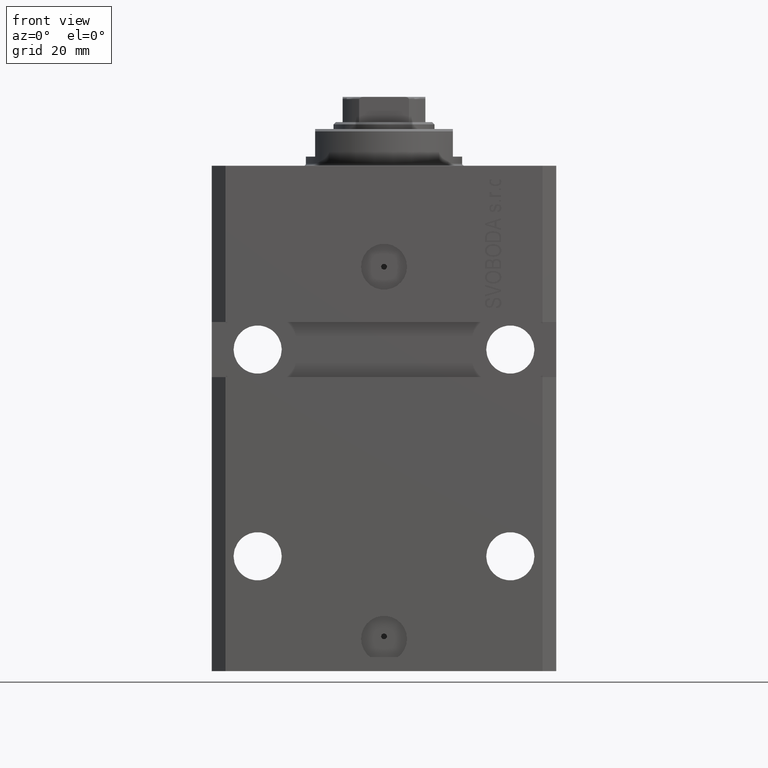
[diagram: clean part render]
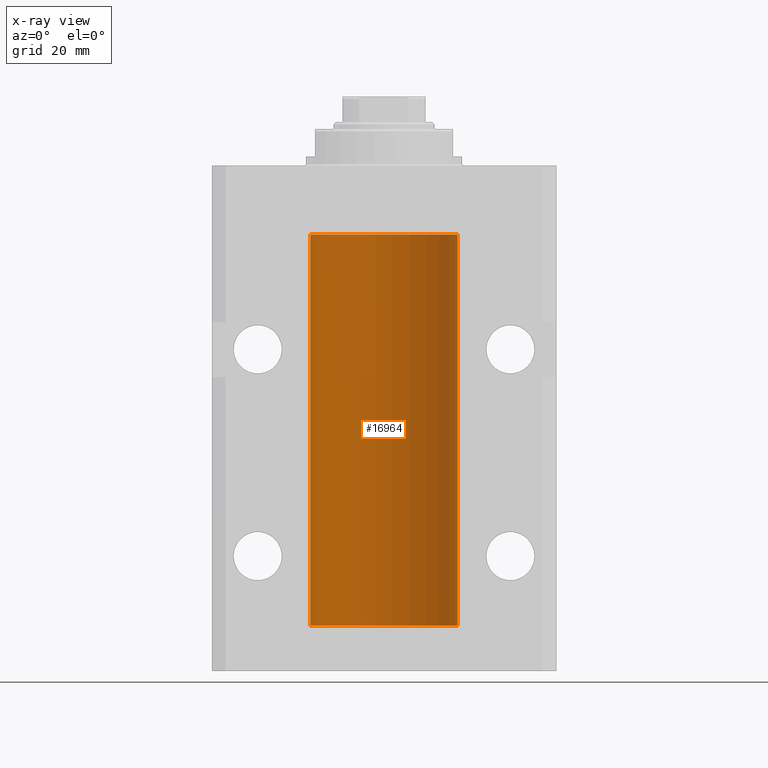
[diagram: x-ray — body ghosted, one internal face saturated and labeled with its STEP entity id]
A machine part, front view, then the same camera in x-ray: the body is ghosted and one INTERNAL B-rep face — a face not visible from any outside direction — is saturated and labeled: STEP entity #16964.
In plain terms, the highlighted cylindrical surface (partial cylindrical patch) has radius 16 mm, axis along (0, 0, 1).
Its self-contained STEP definition (entity closure, byte-faithful):
#267 = CARTESIAN_POINT ( 'NONE',  ( -16.00000000000000000, 1.643679961284177128E-16, -21.37499999999999645 ) ) ;
#620 = CARTESIAN_POINT ( 'NONE',  ( -15.98779057735153941, 0.6249419637998017141, -97.83670145863504786 ) ) ;
#675 = EDGE_CURVE ( 'NONE', #2167, #31385, #31049, .T. ) ;
#847 = CARTESIAN_POINT ( 'NONE',  ( -15.99999999999998934, 0.1631714642025804407, -98.62499999999987210 ) ) ;
#1558 = CARTESIAN_POINT ( 'NONE',  ( -16.00000000000000711, 0.08259886010188650929, -97.37500000000000000 ) ) ;
#1810 = VECTOR ( 'NONE', #18107, 1000.000000000000000 ) ;
#2167 = VERTEX_POINT ( 'NONE', #267 ) ;
#2294 = DIRECTION ( 'NONE',  ( 1.000000000000000000, 0.000000000000000000, 0.000000000000000000 ) ) ;
#2775 = DIRECTION ( 'NONE',  ( 0.000000000000000000, 0.000000000000000000, 1.000000000000000000 ) ) ;
#3204 = LINE ( 'NONE', #24772, #32846 ) ;
#3752 = AXIS2_PLACEMENT_3D ( 'NONE', #28171, #32017, #38945 ) ;
#4665 = DIRECTION ( 'NONE',  ( -0.000000000000000000, -0.000000000000000000, 1.000000000000000000 ) ) ;
#5060 = VERTEX_POINT ( 'NONE', #5230 ) ;
#5063 = CARTESIAN_POINT ( 'NONE',  ( -16.00000000000000000, 1.643679961284177128E-16, -21.37499999999999645 ) ) ;
#5230 = CARTESIAN_POINT ( 'NONE',  ( -16.00000000000013145, 3.685127038166941002E-13, -22.62500000000341771 ) ) ;
#5392 = CARTESIAN_POINT ( 'NONE',  ( -15.99070653155267685, 0.5573233280232928744, -97.67348148680505915 ) ) ;
#5770 = CARTESIAN_POINT ( 'NONE',  ( -15.98778717651346071, 0.6250289588122140971, -22.08131585687052478 ) ) ;
#6244 = CARTESIAN_POINT ( 'NONE',  ( -15.98779057735153941, 0.6249419637998100407, -21.83670145863507273 ) ) ;
#6574 = CARTESIAN_POINT ( 'NONE',  ( 16.00000000000000000, 0.000000000000000000, -100.0999999999999943 ) ) ;
#7789 = CARTESIAN_POINT ( 'NONE',  ( 16.00000000000000000, 0.000000000000000000, -100.0999999999999943 ) ) ;
#8398 = CARTESIAN_POINT ( 'NONE',  ( -16.00000000000013145, 3.685127046438747128E-13, -98.62500000000343903 ) ) ;
#8977 = CARTESIAN_POINT ( 'NONE',  ( -15.99934216141748244, 0.1636497843296308152, -97.39126528029306940 ) ) ;
#9123 = ORIENTED_EDGE ( 'NONE', *, *, #30662, .F. ) ;
#9319 = VERTEX_POINT ( 'NONE', #46837 ) ;
#9720 = ORIENTED_EDGE ( 'NONE', *, *, #28095, .T. ) ;
#9978 = FACE_OUTER_BOUND ( 'NONE', #16064, .T. ) ;
#10205 = VECTOR ( 'NONE', #4665, 1000.000000000000000 ) ;
#11145 = LINE ( 'NONE', #7789, #1810 ) ;
#13182 = CARTESIAN_POINT ( 'NONE',  ( -15.99711699979842017, 0.3253759916140657737, -22.55856151623175521 ) ) ;
#13320 = DIRECTION ( 'NONE',  ( -0.000000000000000000, -0.000000000000000000, 1.000000000000000000 ) ) ;
#13597 = EDGE_CURVE ( 'NONE', #2167, #5060, #42744, .T. ) ;
#14171 = VECTOR ( 'NONE', #13320, 1000.000000000000000 ) ;
#15234 = CARTESIAN_POINT ( 'NONE',  ( -15.98844267028590949, 0.6088369347963275002, -98.16324735024325321 ) ) ;
#16064 = EDGE_LOOP ( 'NONE', ( #9123, #23151, #39865, #9720, #25071, #42817, #32722, #27097 ) ) ;
#16099 = AXIS2_PLACEMENT_3D ( 'NONE', #31753, #17864, #2294 ) ;
#16794 = CARTESIAN_POINT ( 'NONE',  ( -15.99707730059171240, 0.3150375992092407373, -21.45402333202571654 ) ) ;
#16964 = ADVANCED_FACE ( 'NONE', ( #9978 ), #36071, .F. ) ;
#17028 = CARTESIAN_POINT ( 'NONE',  ( -16.00000000000000000, 0.1631714642025800244, -22.62499999999985789 ) ) ;
#17360 = EDGE_CURVE ( 'NONE', #43683, #5060, #3204, .T. ) ;
#17864 = DIRECTION ( 'NONE',  ( 0.000000000000000000, 0.000000000000000000, 1.000000000000000000 ) ) ;
#18107 = DIRECTION ( 'NONE',  ( -0.000000000000000000, -0.000000000000000000, 1.000000000000000000 ) ) ;
#18382 = B_SPLINE_CURVE_WITH_KNOTS ( 'NONE', 3,
 ( #23361, #1558, #8977, #38187, #23588, #5392, #620, #22657, #15234, #29832, #44415, #26235, #847, #44653 ),
 .UNSPECIFIED., .F., .F.,
 ( 4, 2, 2, 2, 2, 2, 4 ),
 ( 1.003919637555167698E-18, 0.0002442776652680894158, 0.0004885553305361776391, 0.0009771106610723541940, 0.001221388326340463017, 0.001465665991608572274, 0.001954221322144760863 ),
 .UNSPECIFIED. ) ;
#19915 = CARTESIAN_POINT ( 'NONE',  ( -15.99070653155267685, 0.5573233280232986475, -21.67348148680506625 ) ) ;
#20536 = EDGE_CURVE ( 'NONE', #43683, #39461, #18382, .T. ) ;
#20622 = CARTESIAN_POINT ( 'NONE',  ( -15.99548640841683067, 0.3843705577988847377, -21.50046628527008608 ) ) ;
#20855 = CARTESIAN_POINT ( 'NONE',  ( -15.98844267028591482, 0.6088369347963316081, -22.16324735024328518 ) ) ;
#21191 = DIRECTION ( 'NONE',  ( -0.000000000000000000, -0.000000000000000000, 1.000000000000000000 ) ) ;
#21683 = DIRECTION ( 'NONE',  ( 1.000000000000000000, 0.000000000000000000, 0.000000000000000000 ) ) ;
#22657 = CARTESIAN_POINT ( 'NONE',  ( -15.98778717651346604, 0.6250289588122097673, -98.08131585687051768 ) ) ;
#22876 = CARTESIAN_POINT ( 'NONE',  ( -16.00000000000000000, 1.959434878635765131E-15, -100.0999999999999943 ) ) ;
#23126 = AXIS2_PLACEMENT_3D ( 'NONE', #24794, #2775, #21683 ) ;
#23151 = ORIENTED_EDGE ( 'NONE', *, *, #24000, .F. ) ;
#23361 = CARTESIAN_POINT ( 'NONE',  ( -16.00000000000000000, -1.303459030566954747E-14, -97.37500000000000000 ) ) ;
#23411 = CARTESIAN_POINT ( 'NONE',  ( -16.00000000000000000, 1.959434878635765131E-15, -15.00000000000000000 ) ) ;
#23498 = CARTESIAN_POINT ( 'NONE',  ( -15.99228023727724413, 0.5003781296993413674, -22.38347829554236057 ) ) ;
#23588 = CARTESIAN_POINT ( 'NONE',  ( -15.99548640841682712, 0.3843705577988784650, -97.50046628527007897 ) ) ;
#23732 = CARTESIAN_POINT ( 'NONE',  ( -15.99070426498503217, 0.5462220647145618058, -22.31460064614143590 ) ) ;
#24000 = EDGE_CURVE ( 'NONE', #38102, #45446, #42833, .T. ) ;
#24772 = CARTESIAN_POINT ( 'NONE',  ( -16.00000000000000000, 1.959434878635765131E-15, -100.0999999999999943 ) ) ;
#24794 = CARTESIAN_POINT ( 'NONE',  ( 0.000000000000000000, 0.000000000000000000, -15.00000000000000000 ) ) ;
#25071 = ORIENTED_EDGE ( 'NONE', *, *, #675, .F. ) ;
#26235 = CARTESIAN_POINT ( 'NONE',  ( -15.99711699979841661, 0.3253759916140614439, -98.55856151623174810 ) ) ;
#27097 = ORIENTED_EDGE ( 'NONE', *, *, #20536, .T. ) ;
#28095 = EDGE_CURVE ( 'NONE', #9319, #31385, #39155, .T. ) ;
#28171 = CARTESIAN_POINT ( 'NONE',  ( 0.000000000000000000, 0.000000000000000000, -100.0999999999999943 ) ) ;
#29832 = CARTESIAN_POINT ( 'NONE',  ( -15.99070426498503572, 0.5462220647145610286, -98.31460064614144301 ) ) ;
#30662 = EDGE_CURVE ( 'NONE', #45446, #39461, #36533, .T. ) ;
#31049 = LINE ( 'NONE', #42269, #14171 ) ;
#31385 = VERTEX_POINT ( 'NONE', #23411 ) ;
#31753 = CARTESIAN_POINT ( 'NONE',  ( 0.000000000000000000, 0.000000000000000000, -100.0999999999999943 ) ) ;
#32017 = DIRECTION ( 'NONE',  ( -0.000000000000000000, -0.000000000000000000, 1.000000000000000000 ) ) ;
#32722 = ORIENTED_EDGE ( 'NONE', *, *, #17360, .F. ) ;
#32846 = VECTOR ( 'NONE', #21191, 1000.000000000000000 ) ;
#34496 = CARTESIAN_POINT ( 'NONE',  ( -16.00000000000000711, 0.08259886010189904093, -21.37500000000000000 ) ) ;
#36071 = CYLINDRICAL_SURFACE ( 'NONE', #3752, 16.00000000000000000 ) ;
#36533 = LINE ( 'NONE', #22876, #10205 ) ;
#38102 = VERTEX_POINT ( 'NONE', #6574 ) ;
#38187 = CARTESIAN_POINT ( 'NONE',  ( -15.99707730059171240, 0.3150375992092294686, -97.45402333202572720 ) ) ;
#38945 = DIRECTION ( 'NONE',  ( 1.000000000000000000, 0.000000000000000000, 0.000000000000000000 ) ) ;
#39155 = CIRCLE ( 'NONE', #23126, 16.00000000000000000 ) ;
#39461 = VERTEX_POINT ( 'NONE', #8398 ) ;
#39865 = ORIENTED_EDGE ( 'NONE', *, *, #44874, .T. ) ;
#40808 = CARTESIAN_POINT ( 'NONE',  ( -16.00000000000000000, -1.303459030566954747E-14, -97.37500000000000000 ) ) ;
#42133 = CARTESIAN_POINT ( 'NONE',  ( -15.99934216141748244, 0.1636497843296417787, -21.39126528029306229 ) ) ;
#42269 = CARTESIAN_POINT ( 'NONE',  ( -16.00000000000000000, 1.959434878635765131E-15, -100.0999999999999943 ) ) ;
#42744 = B_SPLINE_CURVE_WITH_KNOTS ( 'NONE', 3,
 ( #5063, #34496, #42133, #16794, #20622, #19915, #6244, #5770, #20855, #23732, #23498, #13182, #17028, #46454 ),
 .UNSPECIFIED., .F., .F.,
 ( 4, 2, 2, 2, 2, 2, 4 ),
 ( 1.597328219370744179E-19, 0.0002442776652680942405, 0.0004885553305361882643, 0.0009771106610723839011, 0.001221388326340481665, 0.001465665991608579430, 0.001954221322144767369 ),
 .UNSPECIFIED. ) ;
#42817 = ORIENTED_EDGE ( 'NONE', *, *, #13597, .T. ) ;
#42833 = CIRCLE ( 'NONE', #16099, 16.00000000000000000 ) ;
#43683 = VERTEX_POINT ( 'NONE', #40808 ) ;
#44415 = CARTESIAN_POINT ( 'NONE',  ( -15.99228023727724057, 0.5003781296993360383, -98.38347829554236057 ) ) ;
#44653 = CARTESIAN_POINT ( 'NONE',  ( -16.00000000000013145, 3.685127046438747128E-13, -98.62500000000343903 ) ) ;
#44874 = EDGE_CURVE ( 'NONE', #38102, #9319, #11145, .T. ) ;
#45391 = CARTESIAN_POINT ( 'NONE',  ( -16.00000000000000000, 1.959434878635765131E-15, -100.0999999999999943 ) ) ;
#45446 = VERTEX_POINT ( 'NONE', #45391 ) ;
#46454 = CARTESIAN_POINT ( 'NONE',  ( -16.00000000000013145, 3.685127038166941002E-13, -22.62500000000341771 ) ) ;
#46837 = CARTESIAN_POINT ( 'NONE',  ( 16.00000000000000000, 0.000000000000000000, -15.00000000000000000 ) ) ;